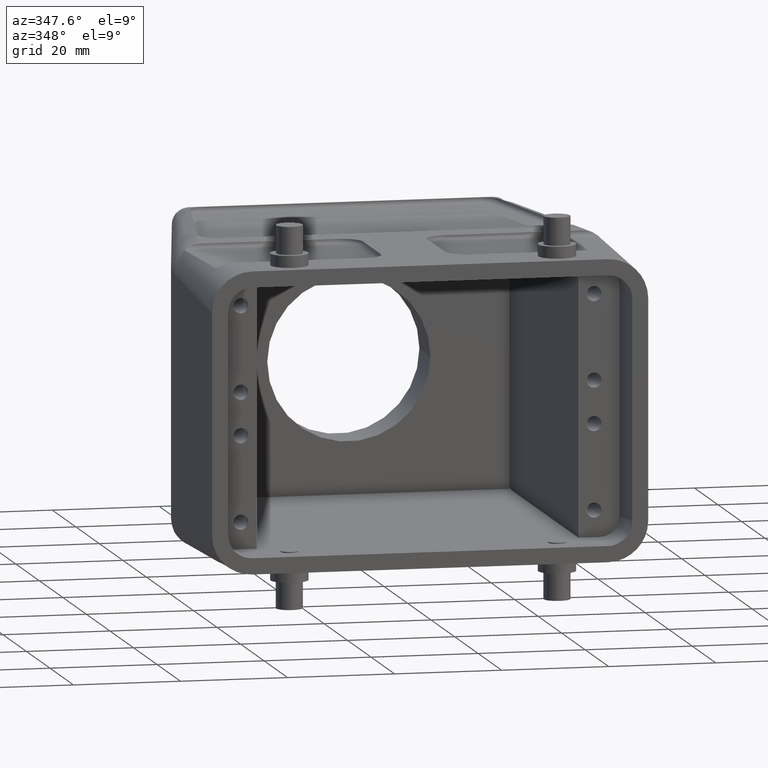
[diagram: clean part render]
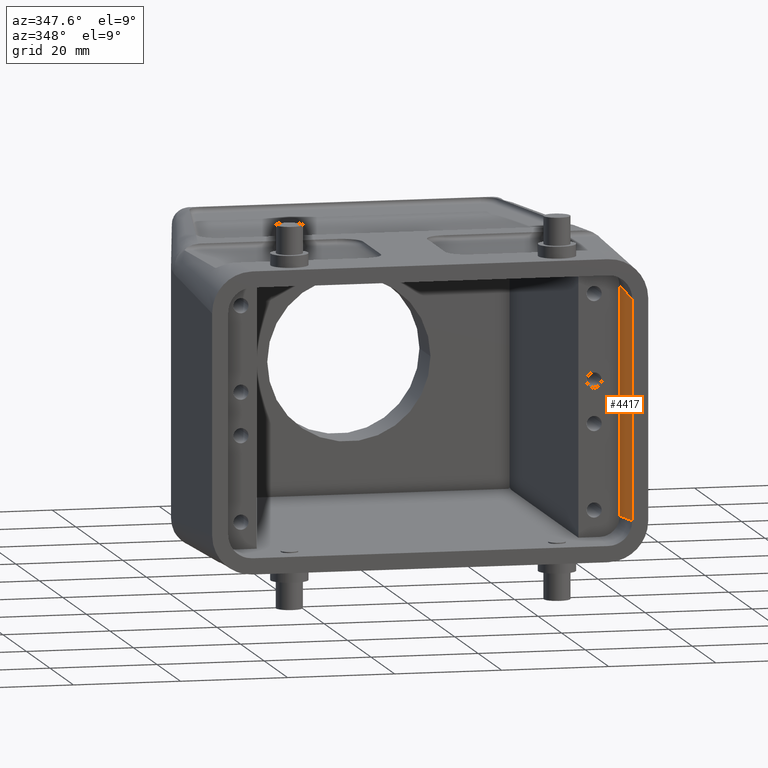
[diagram: same view with one face highlighted and labeled with its STEP entity id]
A machine part, auxiliary view. The second image highlights one B-rep face of the part: STEP entity #4417.
In plain terms, the highlighted planar face has unit normal (1, 0, 0).
Its self-contained STEP definition (entity closure, byte-faithful):
#976=CARTESIAN_POINT('',(3.775E1,-3.925E1,-2.05E1));
#1288=CARTESIAN_POINT('',(3.775E1,-2.855E1,2.126428571429E1));
#1490=DIRECTION('',(0.E0,0.E0,1.E0));
#1491=VECTOR('',#1490,4.252857142858E1);
#1492=CARTESIAN_POINT('',(3.775E1,-2.855E1,-2.126428571429E1));
#1493=LINE('',#1492,#1491);
#1494=DIRECTION('',(0.E0,-9.974586998307E-1,-7.124704998820E-2));
#1495=VECTOR('',#1494,1.072726119068E1);
#1496=CARTESIAN_POINT('',(3.775E1,-2.855E1,2.126428571429E1));
#1497=LINE('',#1496,#1495);
#1498=DIRECTION('',(0.E0,0.E0,-1.E0));
#1499=VECTOR('',#1498,4.1E1);
#1500=CARTESIAN_POINT('',(3.775E1,-3.925E1,2.05E1));
#1501=LINE('',#1500,#1499);
#1502=DIRECTION('',(0.E0,9.974586998307E-1,-7.124704998795E-2));
#1503=VECTOR('',#1502,1.072726119068E1);
#1504=CARTESIAN_POINT('',(3.775E1,-3.925E1,-2.05E1));
#1505=LINE('',#1504,#1503);
#2299=VERTEX_POINT('',#976);
#2300=CARTESIAN_POINT('',(3.775E1,-3.925E1,2.05E1));
#2301=VERTEX_POINT('',#2300);
#2421=VERTEX_POINT('',#1288);
#2422=CARTESIAN_POINT('',(3.775E1,-2.855E1,-2.126428571429E1));
#2423=VERTEX_POINT('',#2422);
#4405=CARTESIAN_POINT('',(3.775E1,-3.39E1,4.956035581927E-13));
#4406=DIRECTION('',(1.E0,0.E0,0.E0));
#4407=DIRECTION('',(0.E0,1.E0,0.E0));
#4408=AXIS2_PLACEMENT_3D('',#4405,#4406,#4407);
#4409=PLANE('',#4408);
#4410=ORIENTED_EDGE('',*,*,#4210,.T.);
#4411=ORIENTED_EDGE('',*,*,#4195,.T.);
#4412=ORIENTED_EDGE('',*,*,#3827,.T.);
#4414=ORIENTED_EDGE('',*,*,#4413,.T.);
#4415=EDGE_LOOP('',(#4410,#4411,#4412,#4414));
#4416=FACE_OUTER_BOUND('',#4415,.F.);
#4417=ADVANCED_FACE('',(#4416),#4409,.F.);
#3827=EDGE_CURVE('',#2301,#2299,#1501,.T.);
#4195=EDGE_CURVE('',#2421,#2301,#1497,.T.);
#4210=EDGE_CURVE('',#2423,#2421,#1493,.T.);
#4413=EDGE_CURVE('',#2299,#2423,#1505,.T.);